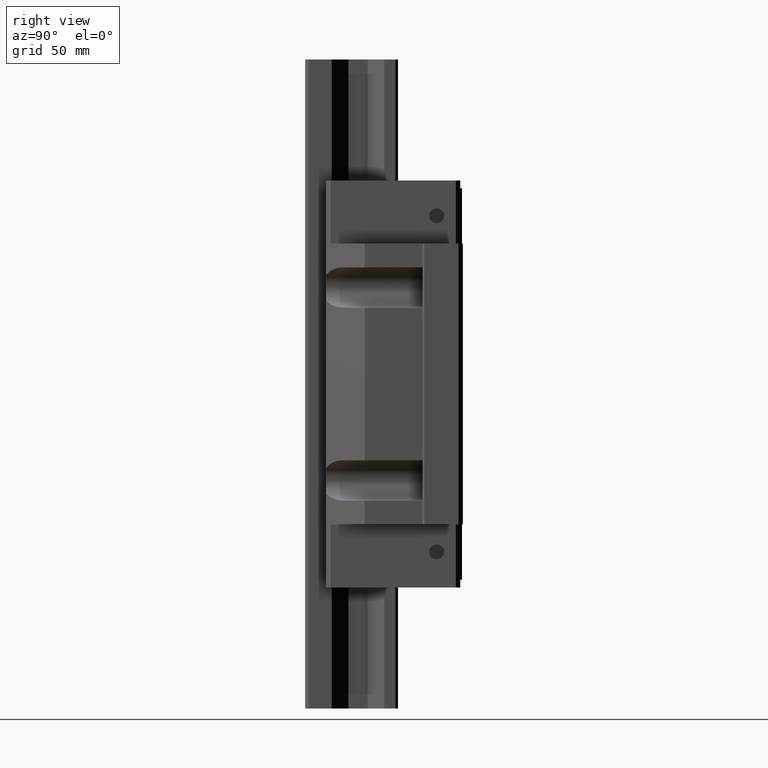
[diagram: clean part render]
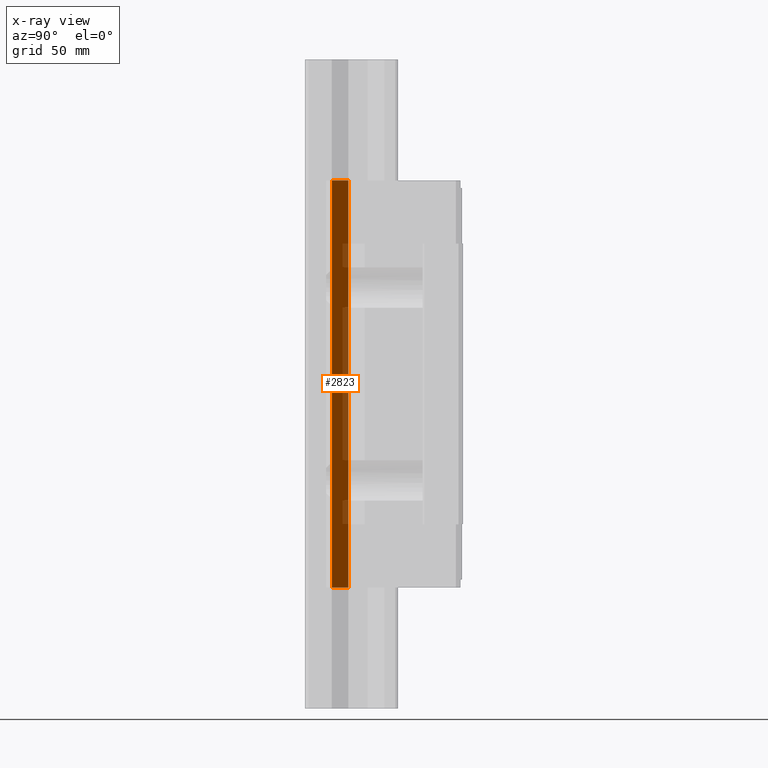
[diagram: x-ray — body ghosted, one internal face saturated and labeled with its STEP entity id]
A machine part, right view, then the same camera in x-ray: the body is ghosted and one INTERNAL B-rep face — a face not visible from any outside direction — is saturated and labeled: STEP entity #2823.
In plain terms, the highlighted planar face has unit normal (-0.7071, -0.7071, 0).
Its self-contained STEP definition (entity closure, byte-faithful):
#247=DIRECTION('',(7.071067585545E-1,-7.071068038186E-1,0.E0));
#248=VECTOR('',#247,1.343502977086E1);
#249=CARTESIAN_POINT('',(2.199993994421E1,-6.528096048387E1,-1.16E2));
#250=LINE('',#249,#248);
#501=DIRECTION('',(-7.071067693190E-1,7.071067930541E-1,0.E0));
#502=VECTOR('',#501,1.343502940587E1);
#503=CARTESIAN_POINT('',(3.149994018310E1,-7.478096104164E1,1.16E2));
#504=LINE('',#503,#502);
#647=DIRECTION('',(4.890625375939E-10,-1.735806594246E-9,-1.E0));
#648=VECTOR('',#647,2.32E2);
#649=CARTESIAN_POINT('',(3.149994018310E1,-7.478096104164E1,1.16E2));
#650=LINE('',#649,#648);
#651=DIRECTION('',(0.E0,0.E0,-1.E0));
#652=VECTOR('',#651,2.32E2);
#653=CARTESIAN_POINT('',(2.199993994421E1,-6.528096048387E1,1.16E2));
#654=LINE('',#653,#652);
#1703=CARTESIAN_POINT('',(2.199993994421E1,-6.528096048387E1,-1.16E2));
#1704=VERTEX_POINT('',#1703);
#1705=CARTESIAN_POINT('',(3.149994029657E1,-7.478096144435E1,-1.16E2));
#1706=VERTEX_POINT('',#1705);
#1847=CARTESIAN_POINT('',(3.149994018310E1,-7.478096104164E1,1.16E2));
#1848=VERTEX_POINT('',#1847);
#1849=CARTESIAN_POINT('',(2.199993994421E1,-6.528096048387E1,1.16E2));
#1850=VERTEX_POINT('',#1849);
#2811=CARTESIAN_POINT('',(2.199993994421E1,-6.528096048387E1,-8.E1));
#2812=DIRECTION('',(-7.071067812009E-1,-7.071067811722E-1,0.E0));
#2813=DIRECTION('',(7.071067811722E-1,-7.071067812009E-1,0.E0));
#2814=AXIS2_PLACEMENT_3D('',#2811,#2812,#2813);
#2815=PLANE('',#2814);
#2816=ORIENTED_EDGE('',*,*,#2805,.T.);
#2817=ORIENTED_EDGE('',*,*,#2320,.F.);
#2819=ORIENTED_EDGE('',*,*,#2818,.F.);
#2820=ORIENTED_EDGE('',*,*,#2664,.F.);
#2821=EDGE_LOOP('',(#2816,#2817,#2819,#2820));
#2822=FACE_OUTER_BOUND('',#2821,.F.);
#2823=ADVANCED_FACE('',(#2822),#2815,.T.);
#2320=EDGE_CURVE('',#1704,#1706,#250,.T.);
#2664=EDGE_CURVE('',#1848,#1850,#504,.T.);
#2805=EDGE_CURVE('',#1848,#1706,#650,.T.);
#2818=EDGE_CURVE('',#1850,#1704,#654,.T.);